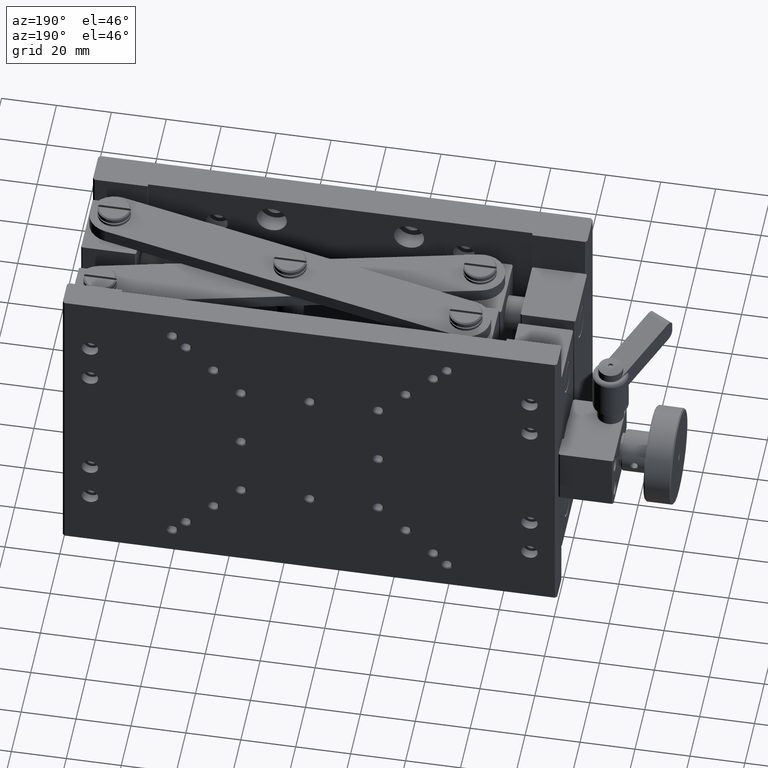
[diagram: clean part render]
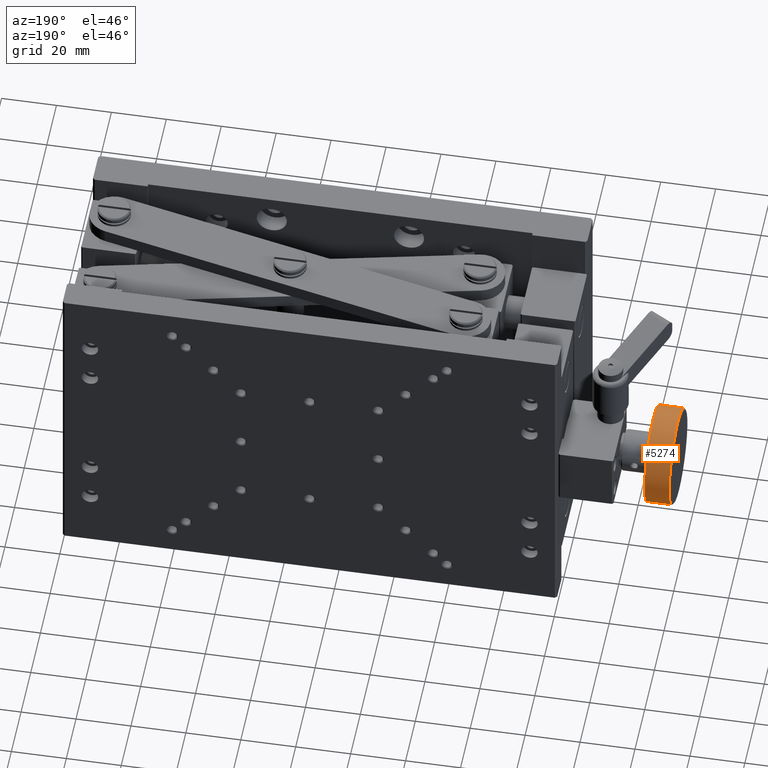
[diagram: same view with one face highlighted and labeled with its STEP entity id]
A machine part, auxiliary view. The second image highlights one B-rep face of the part: STEP entity #5274.
In plain terms, the highlighted cylindrical surface (bore or boss wall) has radius 17.5 mm, axis along (1, 0, 0).
Its self-contained STEP definition (entity closure, byte-faithful):
#516 = CIRCLE ( 'NONE', #5337, 17.50000000000000000 ) ;
#737 = FACE_OUTER_BOUND ( 'NONE', #12860, .T. ) ;
#1759 = DIRECTION ( 'NONE',  ( -1.000000000000000000, -0.000000000000000000, -0.000000000000000000 ) ) ;
#2559 = VERTEX_POINT ( 'NONE', #12737 ) ;
#2699 = DIRECTION ( 'NONE',  ( 0.000000000000000000, 0.000000000000000000, -1.000000000000000000 ) ) ;
#4018 = AXIS2_PLACEMENT_3D ( 'NONE', #13527, #12346, #11174 ) ;
#5274 = ADVANCED_FACE ( 'NONE', ( #6113, #737 ), #12500, .T. ) ;
#5298 = CARTESIAN_POINT ( 'NONE',  ( -31.50000000000000000, 54.40999999999999659, -60.00000000000000000 ) ) ;
#5337 = AXIS2_PLACEMENT_3D ( 'NONE', #8682, #10117, #12470 ) ;
#6113 = FACE_OUTER_BOUND ( 'NONE', #12374, .T. ) ;
#7568 = CARTESIAN_POINT ( 'NONE',  ( -31.50000000000000000, 54.40999999999999659, -77.50000000000000000 ) ) ;
#8480 = ORIENTED_EDGE ( 'NONE', *, *, #9045, .T. ) ;
#8682 = CARTESIAN_POINT ( 'NONE',  ( -40.50000000000000000, 54.40999999999999659, -60.00000000000000000 ) ) ;
#9045 = EDGE_CURVE ( 'NONE', #15311, #15311, #12121, .T. ) ;
#10117 = DIRECTION ( 'NONE',  ( -1.000000000000000000, -0.000000000000000000, -0.000000000000000000 ) ) ;
#11174 = DIRECTION ( 'NONE',  ( 0.000000000000000000, 0.000000000000000000, -1.000000000000000000 ) ) ;
#12121 = CIRCLE ( 'NONE', #13464, 17.50000000000000000 ) ;
#12346 = DIRECTION ( 'NONE',  ( 1.000000000000000000, 0.000000000000000000, 0.000000000000000000 ) ) ;
#12374 = EDGE_LOOP ( 'NONE', ( #8480 ) ) ;
#12431 = EDGE_CURVE ( 'NONE', #2559, #2559, #516, .T. ) ;
#12470 = DIRECTION ( 'NONE',  ( 0.000000000000000000, 0.000000000000000000, -1.000000000000000000 ) ) ;
#12500 = CYLINDRICAL_SURFACE ( 'NONE', #4018, 17.50000000000000000 ) ;
#12737 = CARTESIAN_POINT ( 'NONE',  ( -40.50000000000000000, 54.40999999999999659, -77.50000000000000000 ) ) ;
#12860 = EDGE_LOOP ( 'NONE', ( #14464 ) ) ;
#13464 = AXIS2_PLACEMENT_3D ( 'NONE', #5298, #1759, #2699 ) ;
#13527 = CARTESIAN_POINT ( 'NONE',  ( -41.00000000000000000, 54.40999999999999659, -60.00000000000000000 ) ) ;
#14464 = ORIENTED_EDGE ( 'NONE', *, *, #12431, .F. ) ;
#15311 = VERTEX_POINT ( 'NONE', #7568 ) ;